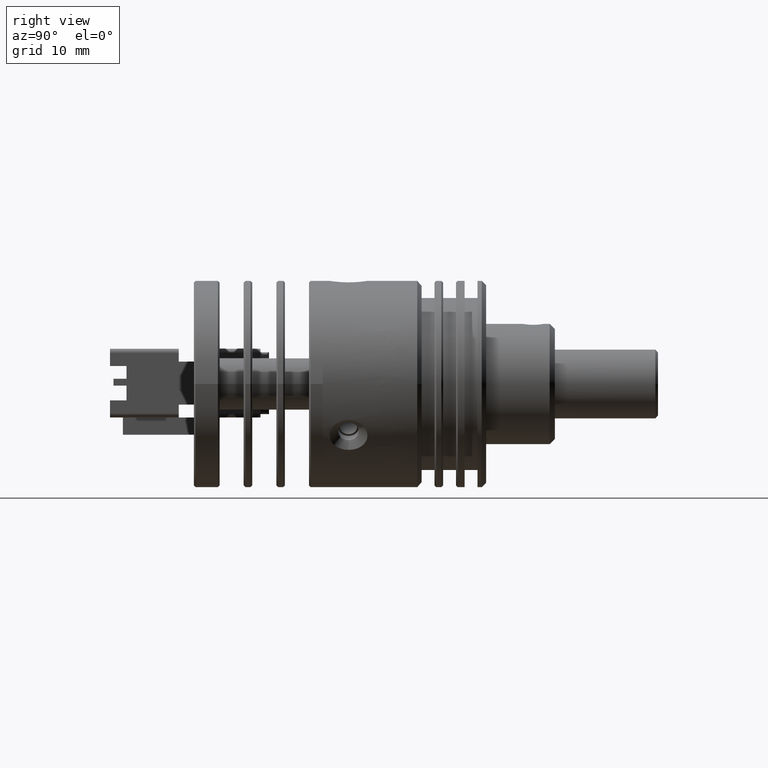
[diagram: clean part render]
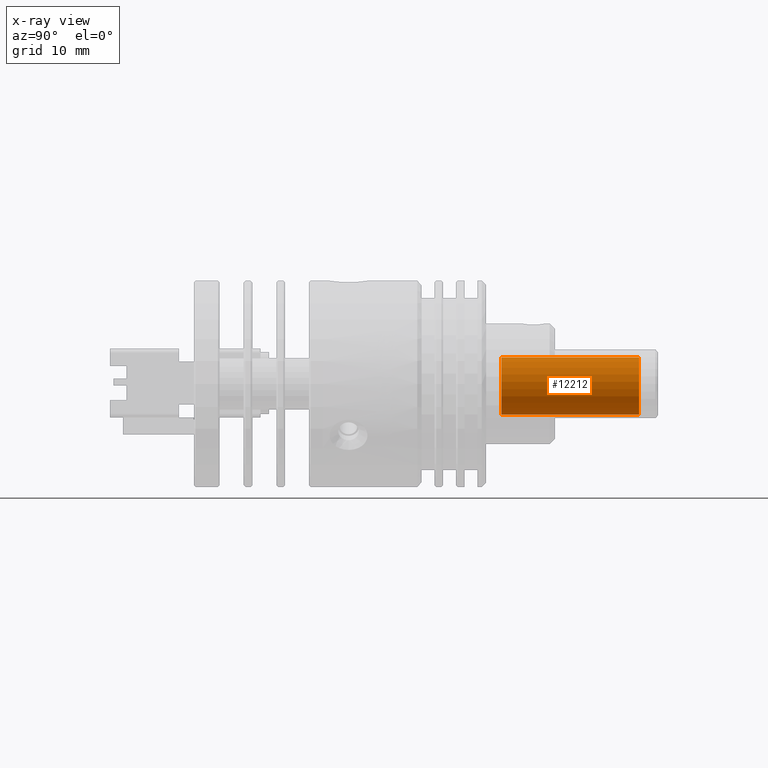
[diagram: x-ray — body ghosted, one internal face saturated and labeled with its STEP entity id]
A machine part, right view, then the same camera in x-ray: the body is ghosted and one INTERNAL B-rep face — a face not visible from any outside direction — is saturated and labeled: STEP entity #12212.
In plain terms, the highlighted cylindrical surface (edge-blend (fillet) strip) has radius 3.6 mm, axis along (0, 1, -0).
Its self-contained STEP definition (entity closure, byte-faithful):
#505 = FACE_OUTER_BOUND ( 'NONE', #15375, .T. ) ;
#1932 = ORIENTED_EDGE ( 'NONE', *, *, #13342, .T. ) ;
#3016 = DIRECTION ( 'NONE',  ( -0.0000000000000000000, -1.000000000000000000, 0.0000000000000000000 ) ) ;
#3076 = VECTOR ( 'NONE', #10081, 1000.000000000000000 ) ;
#3704 = DIRECTION ( 'NONE',  ( -0.5093277177290922400, 0.0000000000000000000, -0.8605726442043544200 ) ) ;
#4361 = EDGE_CURVE ( 'NONE', #18191, #6394, #9950, .T. ) ;
#4489 = ORIENTED_EDGE ( 'NONE', *, *, #13390, .F. ) ;
#5557 = VECTOR ( 'NONE', #16706, 1000.000000000000000 ) ;
#5784 = CARTESIAN_POINT ( 'NONE',  ( 2.574933787635694100, 5.085064489987391100, -9.174035921659418900 ) ) ;
#6394 = VERTEX_POINT ( 'NONE', #13983 ) ;
#6790 = CYLINDRICAL_SURFACE ( 'NONE', #7213, 3.600000000000000500 ) ;
#6993 = LINE ( 'NONE', #18957, #3076 ) ;
#7213 = AXIS2_PLACEMENT_3D ( 'NONE', #13970, #11001, #3704 ) ;
#7271 = DIRECTION ( 'NONE',  ( -0.5093277177290922400, 0.0000000000000000000, -0.8605726442043544200 ) ) ;
#7967 = CARTESIAN_POINT ( 'NONE',  ( 4.408513571460425800, 21.08506448998739200, -6.075974402523742800 ) ) ;
#7998 = AXIS2_PLACEMENT_3D ( 'NONE', #5784, #16139, #7271 ) ;
#8982 = AXIS2_PLACEMENT_3D ( 'NONE', #11860, #3016, #13358 ) ;
#9483 = LINE ( 'NONE', #15217, #5557 ) ;
#9950 = CIRCLE ( 'NONE', #7998, 3.600000000000000500 ) ;
#10081 = DIRECTION ( 'NONE',  ( 0.0000000000000000000, 1.000000000000000000, -0.0000000000000000000 ) ) ;
#11001 = DIRECTION ( 'NONE',  ( 0.0000000000000000000, 1.000000000000000000, -0.0000000000000000000 ) ) ;
#11017 = VERTEX_POINT ( 'NONE', #18353 ) ;
#11860 = CARTESIAN_POINT ( 'NONE',  ( 2.574933787635694100, 21.08506448998739200, -9.174035921659418900 ) ) ;
#12212 = ADVANCED_FACE ( 'NONE', ( #505 ), #6790, .T. ) ;
#12655 = CARTESIAN_POINT ( 'NONE',  ( 4.408513571460425800, 5.085064489987391100, -6.075974402523742800 ) ) ;
#12756 = ORIENTED_EDGE ( 'NONE', *, *, #4361, .T. ) ;
#13342 = EDGE_CURVE ( 'NONE', #11017, #14526, #14834, .T. ) ;
#13358 = DIRECTION ( 'NONE',  ( -0.5093277177290922400, 0.0000000000000000000, -0.8605726442043544200 ) ) ;
#13390 = EDGE_CURVE ( 'NONE', #18191, #14526, #9483, .T. ) ;
#13970 = CARTESIAN_POINT ( 'NONE',  ( 2.574933787635694100, 5.085064489987391100, -9.174035921659418900 ) ) ;
#13983 = CARTESIAN_POINT ( 'NONE',  ( 0.7413540038109620600, 5.085064489987391100, -12.27209744079509500 ) ) ;
#14526 = VERTEX_POINT ( 'NONE', #7967 ) ;
#14834 = CIRCLE ( 'NONE', #8982, 3.600000000000000500 ) ;
#15217 = CARTESIAN_POINT ( 'NONE',  ( 4.408513571460425800, 5.085064489987391100, -6.075974402523742800 ) ) ;
#15375 = EDGE_LOOP ( 'NONE', ( #4489, #12756, #15733, #1932 ) ) ;
#15733 = ORIENTED_EDGE ( 'NONE', *, *, #17428, .T. ) ;
#16139 = DIRECTION ( 'NONE',  ( 0.0000000000000000000, 1.000000000000000000, -0.0000000000000000000 ) ) ;
#16706 = DIRECTION ( 'NONE',  ( 0.0000000000000000000, 1.000000000000000000, -0.0000000000000000000 ) ) ;
#17428 = EDGE_CURVE ( 'NONE', #6394, #11017, #6993, .T. ) ;
#18191 = VERTEX_POINT ( 'NONE', #12655 ) ;
#18353 = CARTESIAN_POINT ( 'NONE',  ( 0.7413540038109620600, 21.08506448998739200, -12.27209744079509500 ) ) ;
#18957 = CARTESIAN_POINT ( 'NONE',  ( 0.7413540038109620600, 5.085064489987391100, -12.27209744079509500 ) ) ;